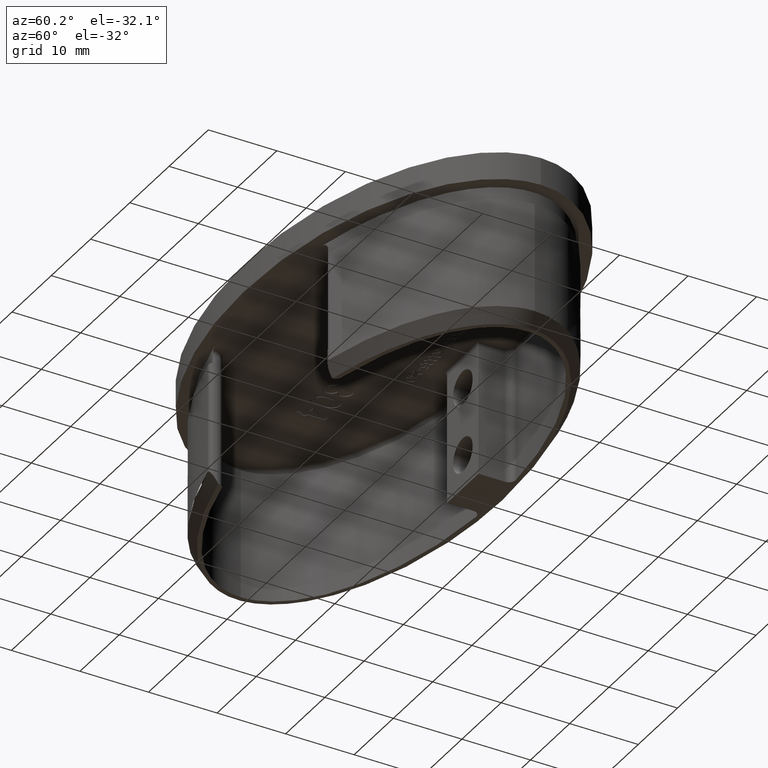
[diagram: clean part render]
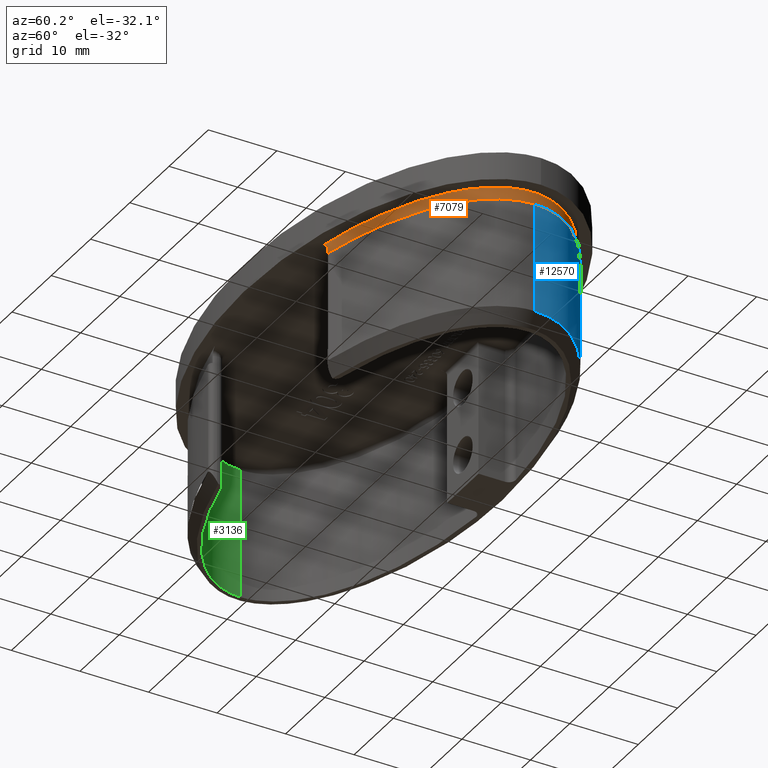
[diagram: same view with three faces highlighted in distinct colors, each labeled with its STEP entity id]
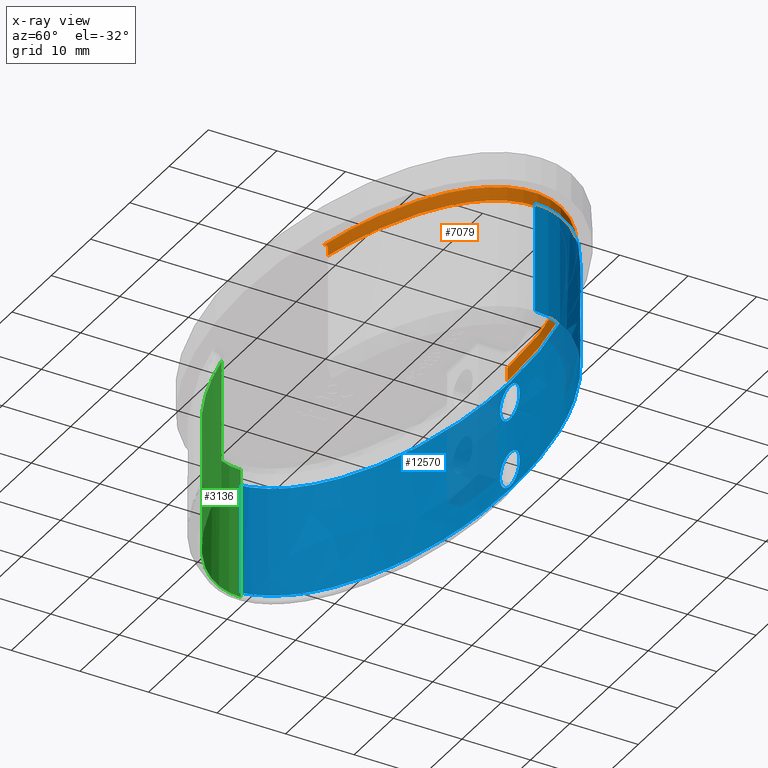
[diagram: x-ray of the same camera — body ghosted, the three highlighted faces saturated]
A machine part, auxiliary view with three faces highlighted in distinct colors.
The next image is the same camera in x-ray (body ghosted, the three faces saturated) — at least one of them is partly hidden behind the body in this view.
Their STEP definitions:

[orange] entity #7079 — the highlighted face is a freeform B-spline surface patch.
#303 = CARTESIAN_POINT ( 'NONE',  ( 14.70177458213686705, -16.59018712653100636, -1.000000000000000000 ) ) ;
#386 = CARTESIAN_POINT ( 'NONE',  ( -10.00098556398771166, 17.52324500305219956, -2.000000000000000000 ) ) ;
#439 = CARTESIAN_POINT ( 'NONE',  ( 10.00098556401274053, 17.52324500303820543, -2.000000000000000000 ) ) ;
#517 = CARTESIAN_POINT ( 'NONE',  ( 5.001459137746250505, 18.00000000000000000, -2.000000000000000000 ) ) ;
#553 = EDGE_CURVE ( 'NONE', #8744, #1716, #4333, .T. ) ;
#1056 = ORIENTED_EDGE ( 'NONE', *, *, #12149, .T. ) ;
#1271 = CARTESIAN_POINT ( 'NONE',  ( 0.000000000000000000, 18.00000000000000000, 0.000000000000000000 ) ) ;
#1339 = CARTESIAN_POINT ( 'NONE',  ( 19.23335817458010766, -15.69082831954310109, 0.000000000000000000 ) ) ;
#1398 = CARTESIAN_POINT ( 'NONE',  ( -5.001459006695888831, -18.00000000000000000, 0.000000000000000000 ) ) ;
#1406 = ORIENTED_EDGE ( 'NONE', *, *, #6774, .F. ) ;
#1465 = CARTESIAN_POINT ( 'NONE',  ( 33.29870535707037504, -8.949571224618509291, 0.000000000000000000 ) ) ;
#1668 = CARTESIAN_POINT ( 'NONE',  ( 30.49755675772195929, 10.96456748856333263, 0.000000000000000000 ) ) ;
#1716 = VERTEX_POINT ( 'NONE', #10536 ) ;
#1877 = CARTESIAN_POINT ( 'NONE',  ( 10.00098556401274053, 17.52324500303820543, -2.000000000000000000 ) ) ;
#1880 = CARTESIAN_POINT ( 'NONE',  ( 14.16660507876495600, -16.69495720496735558, -0.1247870380397225060 ) ) ;
#1924 = CARTESIAN_POINT ( 'NONE',  ( 14.70177458213686883, -16.59018712653100636, -2.000000000000000000 ) ) ;
#2008 = CARTESIAN_POINT ( 'NONE',  ( -30.49755675773563013, -10.96456748853940333, -2.000000000000000000 ) ) ;
#2016 = VECTOR ( 'NONE', #14482, 1000.000000000000000 ) ;
#2070 = CARTESIAN_POINT ( 'NONE',  ( -33.29870535708505486, 8.949571224600251895, -2.000000000000000000 ) ) ;
#2133 = CARTESIAN_POINT ( 'NONE',  ( 19.23335817458010766, -15.69082831954310109, -2.000000000000000000 ) ) ;
#2608 = EDGE_LOOP ( 'NONE', ( #2847, #11158, #1056, #7472, #1406 ) ) ;
#2754 = CARTESIAN_POINT ( 'NONE',  ( 5.001459006695890608, -18.00000000000000000, 0.000000000000000000 ) ) ;
#2847 = ORIENTED_EDGE ( 'NONE', *, *, #553, .T. ) ;
#2944 = CARTESIAN_POINT ( 'NONE',  ( -19.23335817448639773, -15.69082831955618396, 0.000000000000000000 ) ) ;
#2947 = CARTESIAN_POINT ( 'NONE',  ( 37.05002670035415235, 4.610002686341169387, 0.000000000000000000 ) ) ;
#3641 = CARTESIAN_POINT ( 'NONE',  ( 23.46254789306044941, 14.33550923612190786, -2.000000000000000000 ) ) ;
#3778 = CARTESIAN_POINT ( 'NONE',  ( 30.49755675772197350, -10.96456748855990782, -2.000000000000000000 ) ) ;
#4245 = CARTESIAN_POINT ( 'NONE',  ( -30.49755675773563013, -10.96456748853940333, 0.000000000000000000 ) ) ;
#4304 = CARTESIAN_POINT ( 'NONE',  ( -38.00000000000000711, -2.299281454230963639, 0.000000000000000000 ) ) ;
#4333 = B_SPLINE_CURVE_WITH_KNOTS ( 'NONE', 3,
 ( #7693, #4491, #10526, #13559, #15007, #1668, #15067, #2947, #4632, #13425, #10657, #15125, #6211, #12165, #16495, #10595, #14946, #6146 ),
 .UNSPECIFIED., .F., .F.,
 ( 4, 2, 2, 2, 2, 2, 2, 2, 4 ),
 ( 0.000000000000000000, 0.06250000000000000000, 0.1250000000000000000, 0.1875000000000000278, 0.2500000000000000000, 0.3125000000000000000, 0.3750000000000000555, 0.4375000000000000000, 0.4418165816063158169 ),
 .UNSPECIFIED. ) ;
#4426 = CARTESIAN_POINT ( 'NONE',  ( -37.05002670037740842, -4.610002686331815092, 0.000000000000000000 ) ) ;
#4489 = CARTESIAN_POINT ( 'NONE',  ( 37.05002670035131018, -4.610002686339020883, 0.000000000000000000 ) ) ;
#4491 = CARTESIAN_POINT ( 'NONE',  ( 5.001459137746250505, 18.00000000000000000, 0.000000000000000000 ) ) ;
#4559 = CARTESIAN_POINT ( 'NONE',  ( -30.49755675774931163, 10.96456748854965646, 0.000000000000000000 ) ) ;
#4632 = CARTESIAN_POINT ( 'NONE',  ( 38.00000000000000711, 2.299281454214719300, 0.000000000000000000 ) ) ;
#4897 = CARTESIAN_POINT ( 'NONE',  ( 13.78899793503897442, -16.76607947543054422, -3.811648262644349985E-18 ) ) ;
#4932 = EDGE_CURVE ( 'NONE', #1716, #7601, #7014, .T. ) ;
#5088 = CARTESIAN_POINT ( 'NONE',  ( -10.00098556405344219, -17.52324500303577182, -2.000000000000000000 ) ) ;
#5280 = CARTESIAN_POINT ( 'NONE',  ( 19.28503150345665063, -15.67424782684894602, -2.000000000000000000 ) ) ;
#5473 = CARTESIAN_POINT ( 'NONE',  ( 23.48404783755636061, -14.32520717938796473, -2.000000000000000000 ) ) ;
#5714 = VECTOR ( 'NONE', #6400, 1000.000000000000000 ) ;
#6146 = CARTESIAN_POINT ( 'NONE',  ( 13.65535694829211977, -16.79057040111487709, 0.000000000000000000 ) ) ;
#6211 = CARTESIAN_POINT ( 'NONE',  ( 30.49755675772197350, -10.96456748855990782, 0.000000000000000000 ) ) ;
#6212 = CARTESIAN_POINT ( 'NONE',  ( 14.47488620219077227, -16.63518998353909240, -0.3788720075234017770 ) ) ;
#6400 = DIRECTION ( 'NONE',  ( 0.000000000000000000, 0.000000000000000000, -1.000000000000000000 ) ) ;
#6476 = CARTESIAN_POINT ( 'NONE',  ( -10.00098556398771166, 17.52324500305219956, 0.000000000000000000 ) ) ;
#6536 = CARTESIAN_POINT ( 'NONE',  ( 0.000000000000000000, 18.00000000000000000, -2.000000000000000000 ) ) ;
#6597 = CARTESIAN_POINT ( 'NONE',  ( 38.00000000000000711, 2.299281454214719300, -2.000000000000000000 ) ) ;
#6774 = EDGE_CURVE ( 'NONE', #8744, #19388, #13515, .T. ) ;
#7014 = B_SPLINE_CURVE_WITH_KNOTS ( 'NONE', 3,
 ( #10658, #4897, #18403, #1880, #15198, #6212, #15396, #16689, #7694, #18202 ),
 .UNSPECIFIED., .F., .F.,
 ( 4, 2, 2, 2, 4 ),
 ( 0.000000000000000000, 0.0004017078428237928073, 0.0008034156856475856145, 0.001205123528471378422, 0.001606831371295171229 ),
 .UNSPECIFIED. ) ;
#7079 = ADVANCED_FACE ( 'NONE', ( #19367 ), #10447, .F. ) ;
#7259 = CARTESIAN_POINT ( 'NONE',  ( 33.29870535706749735, 8.949571224616407861, 0.000000000000000000 ) ) ;
#7373 = CARTESIAN_POINT ( 'NONE',  ( 37.05002670035415235, 4.610002686341169387, 0.000000000000000000 ) ) ;
#7472 = ORIENTED_EDGE ( 'NONE', *, *, #16670, .F. ) ;
#7601 = VERTEX_POINT ( 'NONE', #7702 ) ;
#7693 = CARTESIAN_POINT ( 'NONE',  ( 0.000000000000000000, 18.00000000000000000, 0.000000000000000000 ) ) ;
#7694 = CARTESIAN_POINT ( 'NONE',  ( 14.70177458213686883, -16.59018712653099925, -0.8638211266415898315 ) ) ;
#7702 = CARTESIAN_POINT ( 'NONE',  ( 14.70177458213686705, -16.59018712653100636, -0.9999999999999991118 ) ) ;
#7820 = CARTESIAN_POINT ( 'NONE',  ( 0.000000000000000000, 18.00000000000000000, 0.000000000000000000 ) ) ;
#7882 = CARTESIAN_POINT ( 'NONE',  ( -19.23335817455206964, 15.69082831953976331, 0.000000000000000000 ) ) ;
#7948 = CARTESIAN_POINT ( 'NONE',  ( -33.29870535704424128, -8.949571224625765709, -2.000000000000000000 ) ) ;
#8744 = VERTEX_POINT ( 'NONE', #14567 ) ;
#8761 = CARTESIAN_POINT ( 'NONE',  ( -33.29870535704424128, -8.949571224625765709, 0.000000000000000000 ) ) ;
#8817 = CARTESIAN_POINT ( 'NONE',  ( 5.001459137746250505, 18.00000000000000000, 0.000000000000000000 ) ) ;
#8877 = CARTESIAN_POINT ( 'NONE',  ( 38.00000000000000711, -2.299281454214719300, 0.000000000000000000 ) ) ;
#9269 = CARTESIAN_POINT ( 'NONE',  ( -23.46254789303310417, 14.33550923613558226, 0.000000000000000000 ) ) ;
#9332 = CARTESIAN_POINT ( 'NONE',  ( 0.000000000000000000, 18.00000000000000000, -2.000000000000000000 ) ) ;
#9401 = CARTESIAN_POINT ( 'NONE',  ( -37.05002670037740842, -4.610002686331815092, -2.000000000000000000 ) ) ;
#9453 = CARTESIAN_POINT ( 'NONE',  ( 19.23335817452707630, 15.69082831955375212, -2.000000000000000000 ) ) ;
#9461 = CARTESIAN_POINT ( 'NONE',  ( -37.05002670033659484, 4.610002686357325352, -2.000000000000000000 ) ) ;
#9533 = CARTESIAN_POINT ( 'NONE',  ( -38.00000000000000711, 2.299281454230968080, -2.000000000000000000 ) ) ;
#9603 = CARTESIAN_POINT ( 'NONE',  ( 38.00000000000000711, -2.299281454214719300, -2.000000000000000000 ) ) ;
#9667 = CARTESIAN_POINT ( 'NONE',  ( 0.000000000000000000, 18.00000000000000000, -2.000000000000000000 ) ) ;
#10328 = CARTESIAN_POINT ( 'NONE',  ( 23.46254789306046362, -14.33550923612532202, 0.000000000000000000 ) ) ;
#10370 = VERTEX_POINT ( 'NONE', #1924 ) ;
#10393 = LINE ( 'NONE', #303, #5714 ) ;
#10447 = B_SPLINE_SURFACE_WITH_KNOTS ( 'NONE', 1, 3, ( 
 ( #1271, #8817, #16371, #13296, #16245, #11915, #7259, #7373, #19315, #8877, #4489, #1465, #11742, #10328, #1339, #19256, #2754, #1398, #17767, #2944, #13421, #4245, #8761, #4426, #4304, #11975, #14944, #13556, #4559, #9269, #7882, #6476, #18525, #7820 ),
 ( #6536, #517, #1877, #16884, #12557, #11121, #18400, #17023, #6597, #9603, #14012, #16825, #15650, #18590, #2133, #15520, #18466, #16949, #5088, #18332, #15458, #2008, #7948, #9401, #11055, #9533, #9461, #2070, #12486, #15584, #14141, #386, #10992, #9332 ) ),
 .UNSPECIFIED., .F., .T., .F.,
 ( 2, 2 ),
 ( 4, 2, 2, 2, 2, 2, 2, 2, 2, 2, 2, 2, 2, 2, 2, 2, 4 ),
 ( 0.000000000000000000, 1.000000000000000000 ),
 ( 0.000000000000000000, 0.06250000000000000000, 0.1250000000000000000, 0.1875000000000000000, 0.2500000000000000000, 0.3125000000000000000, 0.3750000000000000000, 0.4375000000000000000, 0.5000000000000000000, 0.5625000000000000000, 0.6250000000000000000, 0.6875000000000000000, 0.7500000000000000000, 0.8125000000000000000, 0.8750000000000000000, 0.9375000000000000000, 1.000000000000000000 ),
 .UNSPECIFIED. ) ;
#10526 = CARTESIAN_POINT ( 'NONE',  ( 10.00098556401274053, 17.52324500303820543, 0.000000000000000000 ) ) ;
#10536 = CARTESIAN_POINT ( 'NONE',  ( 13.65535694829211977, -16.79057040111487709, 0.000000000000000000 ) ) ;
#10595 = CARTESIAN_POINT ( 'NONE',  ( 14.29835355092065541, -16.67031487050499194, 0.000000000000000000 ) ) ;
#10657 = CARTESIAN_POINT ( 'NONE',  ( 37.05002670035131018, -4.610002686339020883, 0.000000000000000000 ) ) ;
#10658 = CARTESIAN_POINT ( 'NONE',  ( 13.65535694829211977, -16.79057040111487709, 0.000000000000000000 ) ) ;
#10992 = CARTESIAN_POINT ( 'NONE',  ( -5.001459137746250505, 18.00000000000000000, -2.000000000000000000 ) ) ;
#11055 = CARTESIAN_POINT ( 'NONE',  ( -38.00000000000000711, -2.299281454230963639, -2.000000000000000000 ) ) ;
#11113 = CARTESIAN_POINT ( 'NONE',  ( 0.000000000000000000, 18.00000000000000000, -2.000000000000000000 ) ) ;
#11121 = CARTESIAN_POINT ( 'NONE',  ( 30.49755675772195929, 10.96456748856333263, -2.000000000000000000 ) ) ;
#11158 = ORIENTED_EDGE ( 'NONE', *, *, #4932, .T. ) ;
#11475 = CARTESIAN_POINT ( 'NONE',  ( 37.05002670035131018, -4.610002686339020883, -2.000000000000000000 ) ) ;
#11742 = CARTESIAN_POINT ( 'NONE',  ( 30.49755675772197350, -10.96456748855990782, 0.000000000000000000 ) ) ;
#11915 = CARTESIAN_POINT ( 'NONE',  ( 30.49755675772195929, 10.96456748856333263, 0.000000000000000000 ) ) ;
#11975 = CARTESIAN_POINT ( 'NONE',  ( -38.00000000000000711, 2.299281454230968080, 0.000000000000000000 ) ) ;
#12149 = EDGE_CURVE ( 'NONE', #7601, #10370, #10393, .T. ) ;
#12165 = CARTESIAN_POINT ( 'NONE',  ( 23.46254789306046362, -14.33550923612532202, 0.000000000000000000 ) ) ;
#12472 = B_SPLINE_CURVE_WITH_KNOTS ( 'NONE', 3,
 ( #11113, #16940, #439, #9453, #3641, #15642, #16041, #18722, #14476, #18983, #11475, #12749, #3778, #5473, #5280, #14537 ),
 .UNSPECIFIED., .F., .F.,
 ( 4, 2, 2, 2, 2, 2, 2, 4 ),
 ( 0.000000000000000000, 0.06250000000000000000, 0.1250000000000000000, 0.1875000000000000000, 0.2500000000000000000, 0.3125000000000000000, 0.3750000000000000000, 0.4371179829885522006 ),
 .UNSPECIFIED. ) ;
#12486 = CARTESIAN_POINT ( 'NONE',  ( -30.49755675774931163, 10.96456748854965646, -2.000000000000000000 ) ) ;
#12557 = CARTESIAN_POINT ( 'NONE',  ( 23.46254789306044941, 14.33550923612190786, -2.000000000000000000 ) ) ;
#12749 = CARTESIAN_POINT ( 'NONE',  ( 33.29870535707037504, -8.949571224618509291, -2.000000000000000000 ) ) ;
#13296 = CARTESIAN_POINT ( 'NONE',  ( 19.23335817452707630, 15.69082831955375212, 0.000000000000000000 ) ) ;
#13344 = CARTESIAN_POINT ( 'NONE',  ( 0.000000000000000000, 18.00000000000000000, -2.000000000000000000 ) ) ;
#13421 = CARTESIAN_POINT ( 'NONE',  ( -23.46254789304677146, -14.33550923614584072, 0.000000000000000000 ) ) ;
#13425 = CARTESIAN_POINT ( 'NONE',  ( 38.00000000000000711, -2.299281454214719300, 0.000000000000000000 ) ) ;
#13515 = LINE ( 'NONE', #9667, #2016 ) ;
#13556 = CARTESIAN_POINT ( 'NONE',  ( -33.29870535708505486, 8.949571224600251895, 0.000000000000000000 ) ) ;
#13559 = CARTESIAN_POINT ( 'NONE',  ( 19.23335817452707630, 15.69082831955375212, 0.000000000000000000 ) ) ;
#14012 = CARTESIAN_POINT ( 'NONE',  ( 37.05002670035131018, -4.610002686339020883, -2.000000000000000000 ) ) ;
#14141 = CARTESIAN_POINT ( 'NONE',  ( -19.23335817455206964, 15.69082831953976331, -2.000000000000000000 ) ) ;
#14476 = CARTESIAN_POINT ( 'NONE',  ( 38.00000000000000711, 2.299281454214719300, -2.000000000000000000 ) ) ;
#14482 = DIRECTION ( 'NONE',  ( -0.000000000000000000, -0.000000000000000000, -1.000000000000000000 ) ) ;
#14537 = CARTESIAN_POINT ( 'NONE',  ( 14.70177458213686883, -16.59018712653100636, -2.000000000000000000 ) ) ;
#14567 = CARTESIAN_POINT ( 'NONE',  ( 0.000000000000000000, 18.00000000000000000, 0.000000000000000000 ) ) ;
#14944 = CARTESIAN_POINT ( 'NONE',  ( -37.05002670033659484, 4.610002686357325352, 0.000000000000000000 ) ) ;
#14946 = CARTESIAN_POINT ( 'NONE',  ( 13.97770669326301807, -16.73149688002960644, 0.000000000000000000 ) ) ;
#15007 = CARTESIAN_POINT ( 'NONE',  ( 23.46254789306044941, 14.33550923612190786, 0.000000000000000000 ) ) ;
#15067 = CARTESIAN_POINT ( 'NONE',  ( 33.29870535706749735, 8.949571224616407861, 0.000000000000000000 ) ) ;
#15125 = CARTESIAN_POINT ( 'NONE',  ( 33.29870535707037504, -8.949571224618509291, 0.000000000000000000 ) ) ;
#15198 = CARTESIAN_POINT ( 'NONE',  ( 14.28017571177797684, -16.67308670851837249, -0.1972255417781894615 ) ) ;
#15396 = CARTESIAN_POINT ( 'NONE',  ( 14.55618894326511459, -16.61913627987179254, -0.4885235534563836524 ) ) ;
#15458 = CARTESIAN_POINT ( 'NONE',  ( -23.46254789304677146, -14.33550923614584072, -2.000000000000000000 ) ) ;
#15520 = CARTESIAN_POINT ( 'NONE',  ( 10.00098556395974292, -17.52324500304884936, -2.000000000000000000 ) ) ;
#15584 = CARTESIAN_POINT ( 'NONE',  ( -23.46254789303310417, 14.33550923613558226, -2.000000000000000000 ) ) ;
#15642 = CARTESIAN_POINT ( 'NONE',  ( 30.49755675772195929, 10.96456748856333263, -2.000000000000000000 ) ) ;
#15650 = CARTESIAN_POINT ( 'NONE',  ( 30.49755675772197350, -10.96456748855990782, -2.000000000000000000 ) ) ;
#16041 = CARTESIAN_POINT ( 'NONE',  ( 33.29870535706749735, 8.949571224616407861, -2.000000000000000000 ) ) ;
#16245 = CARTESIAN_POINT ( 'NONE',  ( 23.46254789306044941, 14.33550923612190786, 0.000000000000000000 ) ) ;
#16371 = CARTESIAN_POINT ( 'NONE',  ( 10.00098556401274053, 17.52324500303820543, 0.000000000000000000 ) ) ;
#16495 = CARTESIAN_POINT ( 'NONE',  ( 19.23335817458010766, -15.69082831954310109, 0.000000000000000000 ) ) ;
#16670 = EDGE_CURVE ( 'NONE', #19388, #10370, #12472, .T. ) ;
#16689 = CARTESIAN_POINT ( 'NONE',  ( 14.66948927108458811, -16.59665665007613100, -0.7301985605295896464 ) ) ;
#16825 = CARTESIAN_POINT ( 'NONE',  ( 33.29870535707037504, -8.949571224618509291, -2.000000000000000000 ) ) ;
#16884 = CARTESIAN_POINT ( 'NONE',  ( 19.23335817452707630, 15.69082831955375212, -2.000000000000000000 ) ) ;
#16940 = CARTESIAN_POINT ( 'NONE',  ( 5.001459137746250505, 18.00000000000000000, -2.000000000000000000 ) ) ;
#16949 = CARTESIAN_POINT ( 'NONE',  ( -5.001459006695888831, -18.00000000000000000, -2.000000000000000000 ) ) ;
#17023 = CARTESIAN_POINT ( 'NONE',  ( 37.05002670035415235, 4.610002686341169387, -2.000000000000000000 ) ) ;
#17767 = CARTESIAN_POINT ( 'NONE',  ( -10.00098556405344219, -17.52324500303577182, 0.000000000000000000 ) ) ;
#18202 = CARTESIAN_POINT ( 'NONE',  ( 14.70177458213686705, -16.59018712653100636, -0.9999999999999991118 ) ) ;
#18332 = CARTESIAN_POINT ( 'NONE',  ( -19.23335817448639773, -15.69082831955618396, -2.000000000000000000 ) ) ;
#18400 = CARTESIAN_POINT ( 'NONE',  ( 33.29870535706749735, 8.949571224616407861, -2.000000000000000000 ) ) ;
#18403 = CARTESIAN_POINT ( 'NONE',  ( 13.91959360843205751, -16.74172268930961494, -0.02579415412268826202 ) ) ;
#18466 = CARTESIAN_POINT ( 'NONE',  ( 5.001459006695890608, -18.00000000000000000, -2.000000000000000000 ) ) ;
#18525 = CARTESIAN_POINT ( 'NONE',  ( -5.001459137746250505, 18.00000000000000000, 0.000000000000000000 ) ) ;
#18590 = CARTESIAN_POINT ( 'NONE',  ( 23.46254789306046362, -14.33550923612532202, -2.000000000000000000 ) ) ;
#18722 = CARTESIAN_POINT ( 'NONE',  ( 37.05002670035415235, 4.610002686341169387, -2.000000000000000000 ) ) ;
#18983 = CARTESIAN_POINT ( 'NONE',  ( 38.00000000000000711, -2.299281454214719300, -2.000000000000000000 ) ) ;
#19256 = CARTESIAN_POINT ( 'NONE',  ( 10.00098556395974292, -17.52324500304884936, 0.000000000000000000 ) ) ;
#19315 = CARTESIAN_POINT ( 'NONE',  ( 38.00000000000000711, 2.299281454214719300, 0.000000000000000000 ) ) ;
#19367 = FACE_OUTER_BOUND ( 'NONE', #2608, .T. ) ;
#19388 = VERTEX_POINT ( 'NONE', #13344 ) ;

[blue] entity #12570 — the highlighted face is a freeform B-spline surface patch.
#139 = CARTESIAN_POINT ( 'NONE',  ( 37.41301492589269628, 4.801742414845031171, -18.00000000000000355 ) ) ;
#205 = CARTESIAN_POINT ( 'NONE',  ( 10.02102767301664699, 17.92706964964917304, -18.00000000000000000 ) ) ;
#208 = CARTESIAN_POINT ( 'NONE',  ( 0.1651916112997850461, 18.39999999999999503, -7.499999999999989342 ) ) ;
#220 = CARTESIAN_POINT ( 'NONE',  ( -1.175660927181459039E-15, 18.39999999999999858, -17.49999999999998934 ) ) ;
#265 = CARTESIAN_POINT ( 'NONE',  ( -1.535880800957411862, 18.38560925453257866, -13.00067230266357576 ) ) ;
#405 = CARTESIAN_POINT ( 'NONE',  ( -1.987441010615153658, 18.37539106423211521, -13.47461120389274392 ) ) ;
#412 = CARTESIAN_POINT ( 'NONE',  ( 2.169205645797913196, 18.37066986058962215, -3.746569101307366978 ) ) ;
#422 = EDGE_CURVE ( 'NONE', #12236, #14417, #15151, .T. ) ;
#462 = EDGE_LOOP ( 'NONE', ( #11827, #4523, #8415, #16770, #16272, #12958, #19126, #12909, #6901, #10976, #18872, #13170 ) ) ;
#476 = CARTESIAN_POINT ( 'NONE',  ( 0.1631688527252036502, 18.39999999999997016, -2.500000000001036504 ) ) ;
#501 = VERTEX_POINT ( 'NONE', #18956 ) ;
#547 = CARTESIAN_POINT ( 'NONE',  ( 0.8050985230536564785, 18.39609876381970466, -2.627510670136736781 ) ) ;
#764 = CARTESIAN_POINT ( 'NONE',  ( 35.47697406041196899, 7.041375141660725312, -18.00000000000000355 ) ) ;
#815 = CARTESIAN_POINT ( 'NONE',  ( -27.15290040940429606, 13.01076476815872240, -18.00000000000000355 ) ) ;
#823 = VERTEX_POINT ( 'NONE', #13277 ) ;
#827 =( BOUNDED_CURVE ( )  B_SPLINE_CURVE ( 3, ( #764, #15557, #5193, #15694 ),
 .UNSPECIFIED., .F., .F. ) 
 B_SPLINE_CURVE_WITH_KNOTS ( ( 4, 4 ),
 ( 3.534291734473374191, 3.926990816537831108 ),
 .UNSPECIFIED. ) 
 CURVE ( )  GEOMETRIC_REPRESENTATION_ITEM ( )  RATIONAL_B_SPLINE_CURVE ( ( 1.000000000000000000, 0.9871901869117032380, 0.9871901869117032380, 1.000000000000000000 ) ) 
 REPRESENTATION_ITEM ( '' )  );
#969 = CARTESIAN_POINT ( 'NONE',  ( 1.883391063540569954, 18.37793863121195770, -16.65210135456415586 ) ) ;
#1037 = CARTESIAN_POINT ( 'NONE',  ( 0.6471791575970060606, 18.39754593333865884, -17.42026801779619305 ) ) ;
#1362 = CARTESIAN_POINT ( 'NONE',  ( -1.881842511664650885, 18.37797507304529887, -3.346147216251353029 ) ) ;
#1421 = CARTESIAN_POINT ( 'NONE',  ( -2.371567775319074922, 18.36490013659242848, -4.192256412648656116 ) ) ;
#1423 =( BOUNDED_CURVE ( )  B_SPLINE_CURVE ( 3, ( #4893, #6413, #3455, #3720 ),
 .UNSPECIFIED., .F., .F. ) 
 B_SPLINE_CURVE_WITH_KNOTS ( ( 4, 4 ),
 ( 3.926990816537831108, 4.319689898529164296 ),
 .UNSPECIFIED. ) 
 CURVE ( )  GEOMETRIC_REPRESENTATION_ITEM ( )  RATIONAL_B_SPLINE_CURVE ( ( 1.000000000000000000, 0.9871901869164585452, 0.9871901869164585452, 1.000000000000000000 ) ) 
 REPRESENTATION_ITEM ( '' )  );
#1692 = CARTESIAN_POINT ( 'NONE',  ( 14.69504380838229274, 16.99938339710357837, -18.00000000000000355 ) ) ;
#1959 = CARTESIAN_POINT ( 'NONE',  ( -2.419842140115257223, 18.36343584512191285, -14.35122562987971584 ) ) ;
#1984 = VERTEX_POINT ( 'NONE', #2238 ) ;
#2004 = EDGE_CURVE ( 'NONE', #14247, #4524, #9231, .T. ) ;
#2047 =( BOUNDED_SURFACE ( )  B_SPLINE_SURFACE ( 3, 1, ( 
 ( #7718, #6305 ),
 ( #6375, #4862 ),
 ( #10821, #10887 ),
 ( #4658, #18362 ) ),
 .UNSPECIFIED., .F., .F., .F. ) 
 B_SPLINE_SURFACE_WITH_KNOTS ( ( 4, 4 ),
 ( 2, 2 ),
 ( 0.000000000000000000, 1.000000000000000000 ),
 ( 0.000000000000000000, 1.000000000000000000 ),
 .UNSPECIFIED. ) 
 GEOMETRIC_REPRESENTATION_ITEM ( )  RATIONAL_B_SPLINE_SURFACE ( (
 ( 1.000000000000000000, 1.000000000000000000),
 ( 0.3333333333333333703, 0.3333333333333333703),
 ( 0.3333333333333333703, 0.3333333333333333703),
 ( 1.000000000000000000, 1.000000000000000000) ) ) 
 REPRESENTATION_ITEM ( '' )  SURFACE ( )  );
#2152 = CARTESIAN_POINT ( 'NONE',  ( -0.3303083804049491978, 18.40000000000000213, -17.49999999999999289 ) ) ;
#2167 = CARTESIAN_POINT ( 'NONE',  ( -38.40000000000000568, 2.587416071191484514E-13, -18.00000000000000355 ) ) ;
#2238 = CARTESIAN_POINT ( 'NONE',  ( 1.568643228372864806E-11, 18.39999999999999858, -2.500000000000012879 ) ) ;
#2281 = B_SPLINE_CURVE_WITH_KNOTS ( 'NONE', 3,
 ( #17726, #7279, #10346, #17655, #4206, #8899, #16328, #1362, #11700, #7216, #13379, #1421, #8721, #17845, #7399, #19394, #4328, #8662, #19155, #10416, #11935, #2964, #19216, #14833, #13449, #5916, #5786, #14898, #10168, #17785 ),
 .UNSPECIFIED., .F., .F.,
 ( 4, 2, 2, 2, 2, 2, 2, 2, 2, 2, 2, 2, 2, 2, 4 ),
 ( 0.007816617190815325009, 0.008305045095883496070, 0.008793473000951668866, 0.009770328811088012724, 0.01025875671615618379, 0.01074718462122435658, 0.01123561252629252764, 0.01172404043136069871, 0.01221246833642886803, 0.01270089624149703909, 0.01318932414656521016, 0.01367775205163338122, 0.01416617995670155228, 0.01465460786176972161, 0.01563146367190606373 ),
 .UNSPECIFIED. ) ;
#2374 = CARTESIAN_POINT ( 'NONE',  ( 1.884850854270438747, 18.37790624312661691, -13.34937225348497769 ) ) ;
#2417 = EDGE_CURVE ( 'NONE', #15189, #5814, #6749, .T. ) ;
#2442 = CARTESIAN_POINT ( 'NONE',  ( 1.986874477844383424, 18.37540570712491217, -16.52622299319988031 ) ) ;
#2488 = CARTESIAN_POINT ( 'NONE',  ( -23.57556333207725530, 14.72490545253960903, -18.00000000000000355 ) ) ;
#2508 = CARTESIAN_POINT ( 'NONE',  ( 2.371933832095105110, 18.36488893563018010, -15.80650185664534924 ) ) ;
#2629 = CARTESIAN_POINT ( 'NONE',  ( 0.8059648611845420252, 18.39608984410493164, -17.37218839875965415 ) ) ;
#2639 = EDGE_CURVE ( 'NONE', #5428, #12236, #10451, .T. ) ;
#2964 = CARTESIAN_POINT ( 'NONE',  ( -1.989808332753002729, 18.37533183833437889, -6.522268948426369839 ) ) ;
#3026 = CARTESIAN_POINT ( 'NONE',  ( 0.3276204494535567280, 18.39948962050489101, -7.483788030628806709 ) ) ;
#3124 = ORIENTED_EDGE ( 'NONE', *, *, #10784, .T. ) ;
#3217 = CARTESIAN_POINT ( 'NONE',  ( 1.524114617936651150, 18.38561665481735830, -6.988409210695714968 ) ) ;
#3229 = CARTESIAN_POINT ( 'NONE',  ( 38.40000000000000568, 2.253350110431129645E-15, -1.999999999999998224 ) ) ;
#3280 = CARTESIAN_POINT ( 'NONE',  ( 1.988185483837665579, 18.37537216200915680, -3.475644190677206868 ) ) ;
#3348 = CARTESIAN_POINT ( 'NONE',  ( 1.883391063540569510, 18.37793863121195059, -6.652101354564151414 ) ) ;
#3455 = CARTESIAN_POINT ( 'NONE',  ( 19.36905994538534159, 16.07169714423299212, -18.00000000000000355 ) ) ;
#3473 = CARTESIAN_POINT ( 'NONE',  ( -2.499861379274489259, 18.36096824235475111, -14.83305200954916891 ) ) ;
#3490 =( BOUNDED_CURVE ( )  B_SPLINE_CURVE ( 3, ( #7923, #16794, #9509, #3229 ),
 .UNSPECIFIED., .F., .F. ) 
 B_SPLINE_CURVE_WITH_KNOTS ( ( 4, 4 ),
 ( 1.570796326794896558, 3.141592653589793116 ),
 .UNSPECIFIED. ) 
 CURVE ( )  GEOMETRIC_REPRESENTATION_ITEM ( )  RATIONAL_B_SPLINE_CURVE ( ( 1.000000000000000000, 0.8047378541243649375, 0.8047378541243649375, 1.000000000000000000 ) ) 
 REPRESENTATION_ITEM ( '' )  );
#3508 = CARTESIAN_POINT ( 'NONE',  ( 38.40000000000000568, 6.223092789634205433E-13, -18.00000000000000355 ) ) ;
#3534 = CARTESIAN_POINT ( 'NONE',  ( -33.54093318729473339, 9.281007876573450943, -18.00000000000000355 ) ) ;
#3533 = CARTESIAN_POINT ( 'NONE',  ( 2.499941923088452977, 18.36096572438981056, -5.163958009076693223 ) ) ;
#3720 = CARTESIAN_POINT ( 'NONE',  ( 14.69504380838229274, 16.99938339710357837, -18.00000000000000355 ) ) ;
#3860 = CARTESIAN_POINT ( 'NONE',  ( -38.40000000000000568, 0.000000000000000000, -1.999999999999998224 ) ) ;
#3902 = CARTESIAN_POINT ( 'NONE',  ( 0.3288799072439311244, 18.39948525623456277, -12.51635033368965289 ) ) ;
#3933 = CARTESIAN_POINT ( 'NONE',  ( 0.000000000000000000, 18.39999999999999858, -2.000000000000000000 ) ) ;
#4078 = CARTESIAN_POINT ( 'NONE',  ( 2.419906804508649145, 18.36343397718786008, -15.64893935084492682 ) ) ;
#4206 = CARTESIAN_POINT ( 'NONE',  ( -0.8055227779908801233, 18.39609248836096356, -2.627735494484719325 ) ) ;
#4328 = CARTESIAN_POINT ( 'NONE',  ( -2.484014493944838531, 18.36146832404347506, -5.325861409488449105 ) ) ;
#4523 = ORIENTED_EDGE ( 'NONE', *, *, #2417, .T. ) ;
#4524 = VERTEX_POINT ( 'NONE', #11589 ) ;
#4658 = CARTESIAN_POINT ( 'NONE',  ( 38.40000000000000568, 2.253350110431129645E-15, -18.00000000000000355 ) ) ;
#4729 = EDGE_CURVE ( 'NONE', #5814, #9629, #827, .T. ) ;
#4848 = CARTESIAN_POINT ( 'NONE',  ( -2.371567775319074922, 18.36490013659243559, -14.19225641264865700 ) ) ;
#4862 = CARTESIAN_POINT ( 'NONE',  ( -38.40000000000000568, 36.79999999999999005, -1.999999999999997780 ) ) ;
#4893 = CARTESIAN_POINT ( 'NONE',  ( 27.15290040976621455, 13.01076476798530379, -18.00000000000000355 ) ) ;
#4914 = CARTESIAN_POINT ( 'NONE',  ( -1.881842511664661322, 18.37797507304529887, -13.34614721625135125 ) ) ;
#4976 = CARTESIAN_POINT ( 'NONE',  ( -2.500136875366590239, 18.36095962977969265, -15.16277024155509068 ) ) ;
#4984 = CARTESIAN_POINT ( 'NONE',  ( 2.500057761529519418, 18.36096210304060605, -4.837817890716679337 ) ) ;
#5049 = CARTESIAN_POINT ( 'NONE',  ( 2.169627383058749803, 18.37065941323844598, -6.252894183226601399 ) ) ;
#5111 = CARTESIAN_POINT ( 'NONE',  ( -1.884318010876125715, 18.37791680283161000, -16.65105138252633665 ) ) ;
#5177 = CARTESIAN_POINT ( 'NONE',  ( -1.653721930736988366, 18.38301247368754332, -16.88197471015256923 ) ) ;
#5193 = CARTESIAN_POINT ( 'NONE',  ( 30.73023748554194867, 11.29662408430206000, -18.00000000000000355 ) ) ;
#5312 = CARTESIAN_POINT ( 'NONE',  ( -19.36905993986655616, 16.07169714598274268, -18.00000000000000355 ) ) ;
#5392 = CARTESIAN_POINT ( 'NONE',  ( 1.568643228372865129E-11, 18.39999999999999858, -12.50000000000001243 ) ) ;
#5428 = VERTEX_POINT ( 'NONE', #14265 ) ;
#5516 = CARTESIAN_POINT ( 'NONE',  ( 1.254203873368537669, 18.39029760986820961, -12.83124474836059470 ) ) ;
#5786 = CARTESIAN_POINT ( 'NONE',  ( -1.109497050352108216, 18.39245929501087673, -7.246224443163407969 ) ) ;
#5814 = VERTEX_POINT ( 'NONE', #16567 ) ;
#5916 = CARTESIAN_POINT ( 'NONE',  ( -1.255310523569002301, 18.39028188684175902, -7.168209219895874007 ) ) ;
#5981 = VERTEX_POINT ( 'NONE', #3933 ) ;
#6074 = CARTESIAN_POINT ( 'NONE',  ( -14.69504379953443518, 16.99938339885967764, -18.00000000000000355 ) ) ;
#6134 = CARTESIAN_POINT ( 'NONE',  ( -38.40000000000000568, 0.000000000000000000, -1.999999999999998224 ) ) ;
#6299 = CARTESIAN_POINT ( 'NONE',  ( 5.059118609289162016, 18.39999999999999503, -18.00000000000000000 ) ) ;
#6301 = CARTESIAN_POINT ( 'NONE',  ( 2.483800214125521766, 18.36147509616104756, -4.672187695063175994 ) ) ;
#6305 = CARTESIAN_POINT ( 'NONE',  ( -38.40000000000000568, 0.000000000000000000, -1.999999999999998224 ) ) ;
#6359 = CARTESIAN_POINT ( 'NONE',  ( 1.568643228372865129E-11, 18.39999999999999858, -12.50000000000001243 ) ) ;
#6375 = CARTESIAN_POINT ( 'NONE',  ( -38.40000000000000568, 36.79999999999999005, -17.99999999999999645 ) ) ;
#6413 = CARTESIAN_POINT ( 'NONE',  ( 23.57556333466527931, 14.72490545134520801, -18.00000000000000355 ) ) ;
#6442 = CARTESIAN_POINT ( 'NONE',  ( 1.254203873368538336, 18.39029760986821316, -2.831244748360593366 ) ) ;
#6484 = LINE ( 'NONE', #14566, #15627 ) ;
#6492 = CARTESIAN_POINT ( 'NONE',  ( -2.420759474044408943, 18.36340798958389442, -15.64531948145556406 ) ) ;
#6494 = EDGE_CURVE ( 'NONE', #4524, #14247, #15818, .T. ) ;
#6549 = ORIENTED_EDGE ( 'NONE', *, *, #6494, .T. ) ;
#6555 = CARTESIAN_POINT ( 'NONE',  ( -0.3252669441827213404, 18.39950188725401148, -12.51581371501202788 ) ) ;
#6592 = VERTEX_POINT ( 'NONE', #12422 ) ;
#6616 = CARTESIAN_POINT ( 'NONE',  ( -1.989808332753002285, 18.37533183833437533, -16.52226894842637250 ) ) ;
#6620 = DIRECTION ( 'NONE',  ( -0.000000000000000000, -0.000000000000000000, 1.000000000000000000 ) ) ;
#6689 = CARTESIAN_POINT ( 'NONE',  ( -1.109497050352108438, 18.39245929501088028, -17.24622444316340619 ) ) ;
#6749 =( BOUNDED_CURVE ( )  B_SPLINE_CURVE ( 3, ( #7652, #9356, #139, #7773 ),
 .UNSPECIFIED., .F., .T. ) 
 B_SPLINE_CURVE_WITH_KNOTS ( ( 4, 4 ),
 ( 3.141592653589826867, 3.534291734473374191 ),
 .UNSPECIFIED. ) 
 CURVE ( )  GEOMETRIC_REPRESENTATION_ITEM ( )  RATIONAL_B_SPLINE_CURVE ( ( 1.000000000000000000, 0.9871901869884980307, 0.9871901869884980307, 1.000000000000000000 ) ) 
 REPRESENTATION_ITEM ( '' )  );
#6835 = CARTESIAN_POINT ( 'NONE',  ( -37.41301492530803330, 4.801742416258343304, -18.00000000000000355 ) ) ;
#6901 = ORIENTED_EDGE ( 'NONE', *, *, #7479, .T. ) ;
#6961 = CARTESIAN_POINT ( 'NONE',  ( 1.108098961849624420, 18.39248080819175257, -12.75300068026579403 ) ) ;
#6979 = EDGE_CURVE ( 'NONE', #15189, #11166, #6484, .T. ) ;
#7020 = CARTESIAN_POINT ( 'NONE',  ( 2.484083414779223897, 18.36146636755032091, -15.32619137327814052 ) ) ;
#7080 = CARTESIAN_POINT ( 'NONE',  ( 2.169205645797912752, 18.37066986058962215, -13.74656910130736875 ) ) ;
#7129 = EDGE_CURVE ( 'NONE', #9629, #7192, #1423, .T. ) ;
#7192 = VERTEX_POINT ( 'NONE', #13434 ) ;
#7216 = CARTESIAN_POINT ( 'NONE',  ( -2.169184844574240767, 18.37067083581512250, -3.746457076908026096 ) ) ;
#7279 = CARTESIAN_POINT ( 'NONE',  ( -0.1631318898149806407, 18.40000000000003411, -2.499999999998990141 ) ) ;
#7342 = EDGE_LOOP ( 'NONE', ( #16309, #6549 ) ) ;
#7399 = CARTESIAN_POINT ( 'NONE',  ( -2.499861379274489259, 18.36096824235474756, -4.833052009549166250 ) ) ;
#7479 = EDGE_CURVE ( 'NONE', #14417, #6592, #19233, .T. ) ;
#7652 = CARTESIAN_POINT ( 'NONE',  ( 38.40000000000000568, 6.223092789634205433E-13, -18.00000000000000355 ) ) ;
#7687 = CARTESIAN_POINT ( 'NONE',  ( -5.059118606034463284, 18.39999999999999858, -18.00000000000000355 ) ) ;
#7718 = CARTESIAN_POINT ( 'NONE',  ( -38.40000000000000568, 0.000000000000000000, -18.00000000000000355 ) ) ;
#7768 = CARTESIAN_POINT ( 'NONE',  ( -0.6475019864696375249, 18.39754600512937088, -12.57972702758176631 ) ) ;
#7773 = CARTESIAN_POINT ( 'NONE',  ( 35.47697406041196899, 7.041375141660725312, -18.00000000000000355 ) ) ;
#7847 = CARTESIAN_POINT ( 'NONE',  ( 1.108098961849624864, 18.39248080819175613, -2.753000680265790479 ) ) ;
#7923 = CARTESIAN_POINT ( 'NONE',  ( 0.000000000000000000, 18.39999999999999858, -2.000000000000000000 ) ) ;
#7968 = CARTESIAN_POINT ( 'NONE',  ( -2.246025863128090716, 18.36852353625734935, -13.88997692006031315 ) ) ;
#7975 = CARTESIAN_POINT ( 'NONE',  ( 2.484083414779223897, 18.36146636755032802, -5.326191373278140517 ) ) ;
#8055 = CARTESIAN_POINT ( 'NONE',  ( 2.247515674681406228, 18.36848157131877812, -3.892976832336667581 ) ) ;
#8111 = CARTESIAN_POINT ( 'NONE',  ( -2.372943093290019068, 18.36485928658690270, -15.80377564706431492 ) ) ;
#8193 = CARTESIAN_POINT ( 'NONE',  ( -35.47697405870238185, 7.041375143638409106, -18.00000000000000355 ) ) ;
#8277 = FACE_OUTER_BOUND ( 'NONE', #462, .T. ) ;
#8314 = EDGE_CURVE ( 'NONE', #1984, #501, #2281, .T. ) ;
#8400 = CARTESIAN_POINT ( 'NONE',  ( -1.175660927181459039E-15, 18.39999999999999858, -17.49999999999998934 ) ) ;
#8415 = ORIENTED_EDGE ( 'NONE', *, *, #4729, .T. ) ;
#8522 = CARTESIAN_POINT ( 'NONE',  ( 0.6492343960396209646, 18.39753010198286631, -12.58025365846926924 ) ) ;
#8662 = CARTESIAN_POINT ( 'NONE',  ( -2.420759474044408055, 18.36340798958389442, -5.645319481455563171 ) ) ;
#8721 = CARTESIAN_POINT ( 'NONE',  ( -2.419842140115256779, 18.36343584512191285, -4.351225629879714951 ) ) ;
#8834 = CARTESIAN_POINT ( 'NONE',  ( -35.47697405870238185, 7.041375143638409106, -18.00000000000000355 ) ) ;
#8899 = CARTESIAN_POINT ( 'NONE',  ( -1.256823330699485597, 18.39070738683970418, -2.814498127347207390 ) ) ;
#8993 =( BOUNDED_CURVE ( )  B_SPLINE_CURVE ( 3, ( #13609, #7687, #15062, #6074 ),
 .UNSPECIFIED., .F., .F. ) 
 B_SPLINE_CURVE_WITH_KNOTS ( ( 4, 4 ),
 ( 4.712388980384689674, 5.105088061990818105 ),
 .UNSPECIFIED. ) 
 CURVE ( )  GEOMETRIC_REPRESENTATION_ITEM ( )  RATIONAL_B_SPLINE_CURVE ( ( 1.000000000000000000, 0.9871901869415085073, 0.9871901869415085073, 1.000000000000000000 ) ) 
 REPRESENTATION_ITEM ( '' )  );
#9231 = B_SPLINE_CURVE_WITH_KNOTS ( 'NONE', 3,
 ( #8400, #14642, #10164, #1037, #2629, #19084, #11381, #9980, #16022, #969, #2442, #14586, #13066, #2508, #4078, #7020, #10100, #17532, #19148, #11515, #11578, #16089, #7080, #9911, #2374, #14455, #13000, #5516, #6961, #13126, #8522, #3902, #17588, #5392 ),
 .UNSPECIFIED., .F., .F.,
 ( 4, 2, 2, 2, 2, 2, 2, 2, 2, 2, 2, 2, 2, 2, 2, 2, 4 ),
 ( 0.000000000000000000, 0.0004885385744259578130, 0.0009770771488519156261, 0.001465615723277873548, 0.001954154297703831252, 0.002442692872129789174, 0.002931231446555747095, 0.003419770020981705017, 0.003908308595407662504, 0.004396847169833619992, 0.004885385744259578347, 0.005373924318685535835, 0.005862462893111494190, 0.006351001467537451678, 0.006839540041963410033, 0.007328078616389366653, 0.007816617190815323274 ),
 .UNSPECIFIED. ) ;
#9275 = EDGE_CURVE ( 'NONE', #5981, #11166, #3490, .T. ) ;
#9356 = CARTESIAN_POINT ( 'NONE',  ( 38.39999999999982805, 2.424160994207003927, -18.00000000000000355 ) ) ;
#9481 = CARTESIAN_POINT ( 'NONE',  ( -1.256823330699485375, 18.39070738683970418, -12.81449812734721228 ) ) ;
#9490 = CARTESIAN_POINT ( 'NONE',  ( -27.15290040940429606, 13.01076476815872240, -18.00000000000000355 ) ) ;
#9509 = CARTESIAN_POINT ( 'NONE',  ( 38.40000000000000568, 10.77847045233505341, -1.999999999999998446 ) ) ;
#9566 = CARTESIAN_POINT ( 'NONE',  ( 2.371933832095103778, 18.36488893563018365, -5.806501856645348347 ) ) ;
#9629 = VERTEX_POINT ( 'NONE', #11994 ) ;
#9687 = CARTESIAN_POINT ( 'NONE',  ( -1.527994353489187995, 18.38554349540918764, -16.98548960902083849 ) ) ;
#9809 = CARTESIAN_POINT ( 'NONE',  ( -38.40000000000000568, 10.77847045233505163, -1.999999999999998446 ) ) ;
#9911 = CARTESIAN_POINT ( 'NONE',  ( 1.988185483837665579, 18.37537216200915680, -13.47564419067720820 ) ) ;
#9980 = CARTESIAN_POINT ( 'NONE',  ( 1.524114617936651817, 18.38561665481735119, -16.98840921069571763 ) ) ;
#10100 = CARTESIAN_POINT ( 'NONE',  ( 2.499941923088451645, 18.36096572438980701, -15.16395800907669411 ) ) ;
#10162 = ORIENTED_EDGE ( 'NONE', *, *, #8314, .T. ) ;
#10164 = CARTESIAN_POINT ( 'NONE',  ( 0.3276204494535568945, 18.39948962050489101, -17.48378803062881204 ) ) ;
#10168 = CARTESIAN_POINT ( 'NONE',  ( -0.3303083804049503081, 18.39999999999999858, -7.499999999999989342 ) ) ;
#10346 = CARTESIAN_POINT ( 'NONE',  ( -0.3252669441827212293, 18.39950188725401148, -2.515813715012032326 ) ) ;
#10373 = FACE_BOUND ( 'NONE', #11603, .T. ) ;
#10416 = CARTESIAN_POINT ( 'NONE',  ( -2.247554893561938716, 18.36848053429335437, -6.106982933577665307 ) ) ;
#10451 =( BOUNDED_CURVE ( )  B_SPLINE_CURVE ( 3, ( #14303, #5312, #2488, #815 ),
 .UNSPECIFIED., .F., .T. ) 
 B_SPLINE_CURVE_WITH_KNOTS ( ( 4, 4 ),
 ( 5.105088061990818105, 5.497787144218219346 ),
 .UNSPECIFIED. ) 
 CURVE ( )  GEOMETRIC_REPRESENTATION_ITEM ( )  RATIONAL_B_SPLINE_CURVE ( ( 1.000000000000000000, 0.9871901869011070474, 0.9871901869011070474, 1.000000000000000000 ) ) 
 REPRESENTATION_ITEM ( '' )  );
#10784 = EDGE_CURVE ( 'NONE', #501, #1984, #11213, .T. ) ;
#10821 = CARTESIAN_POINT ( 'NONE',  ( 38.39999999999999858, 36.79999999999999005, -17.99999999999999645 ) ) ;
#10887 = CARTESIAN_POINT ( 'NONE',  ( 38.39999999999999858, 36.79999999999999005, -1.999999999999997780 ) ) ;
#10957 = CARTESIAN_POINT ( 'NONE',  ( 0.3288799072439309024, 18.39948525623456277, -2.516350333689648888 ) ) ;
#10976 = ORIENTED_EDGE ( 'NONE', *, *, #16042, .T. ) ;
#11017 = CARTESIAN_POINT ( 'NONE',  ( -30.73023748427713286, 11.29662408495381243, -18.00000000000000355 ) ) ;
#11081 = CARTESIAN_POINT ( 'NONE',  ( 1.652777847213045659, 18.38303198005612060, -6.882797432476207788 ) ) ;
#11166 = VERTEX_POINT ( 'NONE', #16886 ) ;
#11213 = B_SPLINE_CURVE_WITH_KNOTS ( 'NONE', 3,
 ( #16711, #208, #3026, #12187, #15025, #13580, #13635, #3217, #11081, #3348, #12511, #5049, #18358, #9566, #12250, #7975, #3533, #4984, #6301, #16776, #18489, #8055, #412, #3280, #15280, #16978, #15418, #6442, #7847, #547, #14038, #10957, #476, #12387 ),
 .UNSPECIFIED., .F., .F.,
 ( 4, 2, 2, 2, 2, 2, 2, 2, 2, 2, 2, 2, 2, 2, 2, 2, 4 ),
 ( 0.000000000000000000, 0.0004885385744259575962, 0.0009770771488519154092, 0.001465615723277873114, 0.001954154297703831252, 0.002442692872129789607, 0.002931231446555748396, 0.003419770020981706318, 0.003908308595407665106, 0.004396847169833623462, 0.004885385744259581817, 0.005373924318685538437, 0.005862462893111496792, 0.006351001467537453413, 0.006839540041963409166, 0.007328078616389367521, 0.007816617190815325009 ),
 .UNSPECIFIED. ) ;
#11298 = EDGE_CURVE ( 'NONE', #13291, #5981, #19447, .T. ) ;
#11381 = CARTESIAN_POINT ( 'NONE',  ( 1.252344874051814827, 18.39032753233019335, -17.16986840020862104 ) ) ;
#11515 = CARTESIAN_POINT ( 'NONE',  ( 2.419960632695372649, 18.36343228081016576, -14.35152876149933299 ) ) ;
#11578 = CARTESIAN_POINT ( 'NONE',  ( 2.372739082144609934, 18.36486527392986545, -14.19567652667255508 ) ) ;
#11589 = CARTESIAN_POINT ( 'NONE',  ( 1.568643228372865129E-11, 18.39999999999999858, -12.50000000000001243 ) ) ;
#11603 = EDGE_LOOP ( 'NONE', ( #3124, #10162 ) ) ;
#11662 = CARTESIAN_POINT ( 'NONE',  ( -22.49419920487315494, 18.39999999999999858, -1.999999999999998446 ) ) ;
#11700 = CARTESIAN_POINT ( 'NONE',  ( -1.987441010615154546, 18.37539106423211521, -3.474611203892741695 ) ) ;
#11719 = CARTESIAN_POINT ( 'NONE',  ( 0.000000000000000000, 18.39999999999999858, -2.000000000000000000 ) ) ;
#11827 = ORIENTED_EDGE ( 'NONE', *, *, #6979, .F. ) ;
#11935 = CARTESIAN_POINT ( 'NONE',  ( -2.170842751392755954, 18.37062546819550590, -6.250632520431937067 ) ) ;
#11994 = CARTESIAN_POINT ( 'NONE',  ( 27.15290040976621455, 13.01076476798530379, -18.00000000000000355 ) ) ;
#12187 = CARTESIAN_POINT ( 'NONE',  ( 0.6471791575970059496, 18.39754593333865884, -7.420268017796192161 ) ) ;
#12236 = VERTEX_POINT ( 'NONE', #14130 ) ;
#12250 = CARTESIAN_POINT ( 'NONE',  ( 2.419906804508648701, 18.36343397718785653, -5.648939350844921492 ) ) ;
#12265 = FACE_BOUND ( 'NONE', #7342, .T. ) ;
#12314 = CARTESIAN_POINT ( 'NONE',  ( -2.169184844574238546, 18.37067083581511895, -13.74645707690802787 ) ) ;
#12387 = CARTESIAN_POINT ( 'NONE',  ( 1.568643228372864806E-11, 18.39999999999999858, -2.500000000000012879 ) ) ;
#12422 = CARTESIAN_POINT ( 'NONE',  ( -38.40000000000000568, 2.587416071191484514E-13, -18.00000000000000355 ) ) ;
#12441 = CARTESIAN_POINT ( 'NONE',  ( -2.483577621140823144, 18.36148198843602941, -14.67077915289116952 ) ) ;
#12511 = CARTESIAN_POINT ( 'NONE',  ( 1.986874477844383424, 18.37540570712491217, -6.526222993199885636 ) ) ;
#12570 = ADVANCED_FACE ( 'NONE', ( #8277, #10373, #12265 ), #2047, .F. ) ;
#12777 = CARTESIAN_POINT ( 'NONE',  ( -1.175660927181459039E-15, 18.39999999999999858, -17.49999999999998934 ) ) ;
#12909 = ORIENTED_EDGE ( 'NONE', *, *, #422, .T. ) ;
#12958 = ORIENTED_EDGE ( 'NONE', *, *, #17752, .T. ) ;
#13000 = CARTESIAN_POINT ( 'NONE',  ( 1.524988682310253418, 18.38559917879655714, -13.01230379174488228 ) ) ;
#13066 = CARTESIAN_POINT ( 'NONE',  ( 2.247275436514267977, 18.36848809859881015, -16.10737006508635716 ) ) ;
#13126 = CARTESIAN_POINT ( 'NONE',  ( 0.8050985230536570336, 18.39609876381970821, -12.62751067013674167 ) ) ;
#13144 = LINE ( 'NONE', #18484, #18288 ) ;
#13170 = ORIENTED_EDGE ( 'NONE', *, *, #9275, .T. ) ;
#13277 = CARTESIAN_POINT ( 'NONE',  ( 0.000000000000000000, 18.39999999999999858, -18.00000000000000355 ) ) ;
#13291 = VERTEX_POINT ( 'NONE', #6134 ) ;
#13379 = CARTESIAN_POINT ( 'NONE',  ( -2.246025863128092492, 18.36852353625735645, -3.889976920060311372 ) ) ;
#13434 = CARTESIAN_POINT ( 'NONE',  ( 14.69504380838229274, 16.99938339710357837, -18.00000000000000355 ) ) ;
#13449 = CARTESIAN_POINT ( 'NONE',  ( -1.527994353489186885, 18.38554349540918409, -6.985489609020838486 ) ) ;
#13580 = CARTESIAN_POINT ( 'NONE',  ( 1.108743378132702739, 18.39247168172201796, -7.246674270587737610 ) ) ;
#13609 = CARTESIAN_POINT ( 'NONE',  ( 0.000000000000000000, 18.39999999999999858, -18.00000000000000355 ) ) ;
#13635 = CARTESIAN_POINT ( 'NONE',  ( 1.252344874051814605, 18.39032753233019335, -7.169868400208614823 ) ) ;
#14038 = CARTESIAN_POINT ( 'NONE',  ( 0.6492343960396215197, 18.39753010198286987, -2.580253658469267020 ) ) ;
#14130 = CARTESIAN_POINT ( 'NONE',  ( -27.15290040940429606, 13.01076476815872240, -18.00000000000000355 ) ) ;
#14162 = CARTESIAN_POINT ( 'NONE',  ( -2.170842751392755954, 18.37062546819551301, -16.25063252043193884 ) ) ;
#14233 = CARTESIAN_POINT ( 'NONE',  ( -1.255310523569002301, 18.39028188684175902, -17.16820921989587134 ) ) ;
#14247 = VERTEX_POINT ( 'NONE', #220 ) ;
#14265 = CARTESIAN_POINT ( 'NONE',  ( -14.69504379953443518, 16.99938339885967764, -18.00000000000000355 ) ) ;
#14303 = CARTESIAN_POINT ( 'NONE',  ( -14.69504379953443518, 16.99938339885967764, -18.00000000000000355 ) ) ;
#14318 = CARTESIAN_POINT ( 'NONE',  ( -38.40000000000001279, 2.424160994934089874, -18.00000000000000355 ) ) ;
#14417 = VERTEX_POINT ( 'NONE', #8834 ) ;
#14455 = CARTESIAN_POINT ( 'NONE',  ( 1.651519261884055068, 18.38305992417015489, -13.11593024862793300 ) ) ;
#14566 = CARTESIAN_POINT ( 'NONE',  ( 38.40000000000000568, 2.253350110431129645E-15, -20.00000000000000000 ) ) ;
#14574 =( BOUNDED_CURVE ( )  B_SPLINE_CURVE ( 3, ( #1692, #205, #6299, #16772 ),
 .UNSPECIFIED., .F., .T. ) 
 B_SPLINE_CURVE_WITH_KNOTS ( ( 4, 4 ),
 ( 4.319689898529164296, 4.712388980384689674 ),
 .UNSPECIFIED. ) 
 CURVE ( )  GEOMETRIC_REPRESENTATION_ITEM ( )  RATIONAL_B_SPLINE_CURVE ( ( 1.000000000000000000, 0.9871901869252900363, 0.9871901869252900363, 1.000000000000000000 ) ) 
 REPRESENTATION_ITEM ( '' )  );
#14586 = CARTESIAN_POINT ( 'NONE',  ( 2.169627383058750247, 18.37065941323844243, -16.25289418322660495 ) ) ;
#14642 = CARTESIAN_POINT ( 'NONE',  ( 0.1651916112997849628, 18.39999999999999858, -17.49999999999999289 ) ) ;
#14833 = CARTESIAN_POINT ( 'NONE',  ( -1.653721930736988366, 18.38301247368752911, -6.881974710152564789 ) ) ;
#14898 = CARTESIAN_POINT ( 'NONE',  ( -0.6584366203525915395, 18.39785948752490441, -7.433617273154916383 ) ) ;
#15025 = CARTESIAN_POINT ( 'NONE',  ( 0.8059648611845414701, 18.39608984410492809, -7.372188398759647932 ) ) ;
#15062 = CARTESIAN_POINT ( 'NONE',  ( -10.02102766669287703, 17.92706965024990495, -18.00000000000000355 ) ) ;
#15151 =( BOUNDED_CURVE ( )  B_SPLINE_CURVE ( 3, ( #9490, #11017, #3534, #15546 ),
 .UNSPECIFIED., .F., .T. ) 
 B_SPLINE_CURVE_WITH_KNOTS ( ( 4, 4 ),
 ( 5.497787144218219346, 5.890486226179666218 ),
 .UNSPECIFIED. ) 
 CURVE ( )  GEOMETRIC_REPRESENTATION_ITEM ( )  RATIONAL_B_SPLINE_CURVE ( ( 1.000000000000000000, 0.9871901869184021017, 0.9871901869184021017, 1.000000000000000000 ) ) 
 REPRESENTATION_ITEM ( '' )  );
#15189 = VERTEX_POINT ( 'NONE', #3508 ) ;
#15280 = CARTESIAN_POINT ( 'NONE',  ( 1.884850854270438747, 18.37790624312662047, -3.349372253484975026 ) ) ;
#15418 = CARTESIAN_POINT ( 'NONE',  ( 1.524988682310253640, 18.38559917879655359, -3.012303791744877390 ) ) ;
#15475 = CARTESIAN_POINT ( 'NONE',  ( -2.484014493944838975, 18.36146832404348572, -15.32586140948845532 ) ) ;
#15546 = CARTESIAN_POINT ( 'NONE',  ( -35.47697405870238185, 7.041375143638409106, -18.00000000000000355 ) ) ;
#15557 = CARTESIAN_POINT ( 'NONE',  ( 33.54093318903368015, 9.281007875298792342, -18.00000000000000355 ) ) ;
#15627 = VECTOR ( 'NONE', #19071, 1000.000000000000000 ) ;
#15694 = CARTESIAN_POINT ( 'NONE',  ( 27.15290040976621455, 13.01076476798530379, -18.00000000000000355 ) ) ;
#15818 = B_SPLINE_CURVE_WITH_KNOTS ( 'NONE', 3,
 ( #6359, #16768, #6555, #7768, #18279, #9481, #265, #4914, #405, #12314, #7968, #4848, #1959, #12441, #3473, #4976, #15475, #6492, #8111, #18680, #14162, #6616, #5111, #5177, #9687, #14233, #6689, #17188, #2152, #12777 ),
 .UNSPECIFIED., .F., .F.,
 ( 4, 2, 2, 2, 2, 2, 2, 2, 2, 2, 2, 2, 2, 2, 4 ),
 ( 0.007816617190815323274, 0.008305045095883492601, 0.008793473000951660193, 0.009770328811087998847, 0.01025875671615616991, 0.01074718462122433923, 0.01123561252629250856, 0.01172404043136067789, 0.01221246833642884722, 0.01270089624149702348, 0.01318932414656519628, 0.01367775205163337254, 0.01416617995670154707, 0.01465460786176972161, 0.01563146367190607067 ),
 .UNSPECIFIED. ) ;
#15898 = EDGE_CURVE ( 'NONE', #7192, #823, #14574, .T. ) ;
#16022 = CARTESIAN_POINT ( 'NONE',  ( 1.652777847213044327, 18.38303198005611350, -16.88279743247620956 ) ) ;
#16042 = EDGE_CURVE ( 'NONE', #6592, #13291, #13144, .T. ) ;
#16089 = CARTESIAN_POINT ( 'NONE',  ( 2.247515674681405784, 18.36848157131878168, -13.89297683233667158 ) ) ;
#16272 = ORIENTED_EDGE ( 'NONE', *, *, #15898, .T. ) ;
#16309 = ORIENTED_EDGE ( 'NONE', *, *, #2004, .T. ) ;
#16328 = CARTESIAN_POINT ( 'NONE',  ( -1.535880800957400760, 18.38560925453258221, -3.000672302663572655 ) ) ;
#16567 = CARTESIAN_POINT ( 'NONE',  ( 35.47697406041196899, 7.041375141660725312, -18.00000000000000355 ) ) ;
#16711 = CARTESIAN_POINT ( 'NONE',  ( -1.175660927181459039E-15, 18.39999999999999858, -7.499999999999989342 ) ) ;
#16768 = CARTESIAN_POINT ( 'NONE',  ( -0.1631318898149808072, 18.40000000000003411, -12.49999999999898748 ) ) ;
#16770 = ORIENTED_EDGE ( 'NONE', *, *, #7129, .T. ) ;
#16772 = CARTESIAN_POINT ( 'NONE',  ( 0.000000000000000000, 18.39999999999999858, -18.00000000000000355 ) ) ;
#16776 = CARTESIAN_POINT ( 'NONE',  ( 2.419960632695373093, 18.36343228081016932, -4.351528761499333875 ) ) ;
#16794 = CARTESIAN_POINT ( 'NONE',  ( 22.49419920487314783, 18.39999999999999858, -1.999999999999998446 ) ) ;
#16886 = CARTESIAN_POINT ( 'NONE',  ( 38.40000000000000568, 2.253350110431129645E-15, -1.999999999999998224 ) ) ;
#16978 = CARTESIAN_POINT ( 'NONE',  ( 1.651519261884055734, 18.38305992417016199, -3.115930248627929444 ) ) ;
#17188 = CARTESIAN_POINT ( 'NONE',  ( -0.6584366203525917616, 18.39785948752489730, -17.43361727315491194 ) ) ;
#17532 = CARTESIAN_POINT ( 'NONE',  ( 2.500057761529519862, 18.36096210304060250, -14.83781789071668378 ) ) ;
#17588 = CARTESIAN_POINT ( 'NONE',  ( 0.1631688527252032339, 18.39999999999996305, -12.50000000000103562 ) ) ;
#17655 = CARTESIAN_POINT ( 'NONE',  ( -0.6475019864696370808, 18.39754600512937799, -2.579727027581772525 ) ) ;
#17726 = CARTESIAN_POINT ( 'NONE',  ( 1.568643228372864806E-11, 18.39999999999999858, -2.500000000000012879 ) ) ;
#17752 = EDGE_CURVE ( 'NONE', #823, #5428, #8993, .T. ) ;
#17785 = CARTESIAN_POINT ( 'NONE',  ( -1.175660927181459039E-15, 18.39999999999999858, -7.499999999999989342 ) ) ;
#17845 = CARTESIAN_POINT ( 'NONE',  ( -2.483577621140822256, 18.36148198843603652, -4.670779152891168629 ) ) ;
#18279 = CARTESIAN_POINT ( 'NONE',  ( -0.8055227779908796792, 18.39609248836096000, -12.62773549448471755 ) ) ;
#18288 = VECTOR ( 'NONE', #6620, 1000.000000000000000 ) ;
#18358 = CARTESIAN_POINT ( 'NONE',  ( 2.247275436514268865, 18.36848809859881726, -6.107370065086357158 ) ) ;
#18362 = CARTESIAN_POINT ( 'NONE',  ( 38.40000000000000568, 2.253350110431129645E-15, -1.999999999999998224 ) ) ;
#18484 = CARTESIAN_POINT ( 'NONE',  ( -38.40000000000000568, 0.000000000000000000, -20.00000000000000000 ) ) ;
#18489 = CARTESIAN_POINT ( 'NONE',  ( 2.372739082144609490, 18.36486527392986545, -4.195676526672552420 ) ) ;
#18680 = CARTESIAN_POINT ( 'NONE',  ( -2.247554893561940048, 18.36848053429336147, -16.10698293357766886 ) ) ;
#18872 = ORIENTED_EDGE ( 'NONE', *, *, #11298, .T. ) ;
#18956 = CARTESIAN_POINT ( 'NONE',  ( -1.175660927181459039E-15, 18.39999999999999858, -7.499999999999989342 ) ) ;
#19071 = DIRECTION ( 'NONE',  ( -0.000000000000000000, -0.000000000000000000, 1.000000000000000000 ) ) ;
#19084 = CARTESIAN_POINT ( 'NONE',  ( 1.108743378132703850, 18.39247168172202507, -17.24667427058774294 ) ) ;
#19126 = ORIENTED_EDGE ( 'NONE', *, *, #2639, .T. ) ;
#19148 = CARTESIAN_POINT ( 'NONE',  ( 2.483800214125521766, 18.36147509616104756, -14.67218769506317599 ) ) ;
#19155 = CARTESIAN_POINT ( 'NONE',  ( -2.372943093290018179, 18.36485928658689915, -5.803775647064301602 ) ) ;
#19216 = CARTESIAN_POINT ( 'NONE',  ( -1.884318010876125937, 18.37791680283161000, -6.651051382526343758 ) ) ;
#19233 =( BOUNDED_CURVE ( )  B_SPLINE_CURVE ( 3, ( #8193, #6835, #14318, #2167 ),
 .UNSPECIFIED., .F., .F. ) 
 B_SPLINE_CURVE_WITH_KNOTS ( ( 4, 4 ),
 ( 5.890486226179666218, 6.283185307179586232 ),
 .UNSPECIFIED. ) 
 CURVE ( )  GEOMETRIC_REPRESENTATION_ITEM ( )  RATIONAL_B_SPLINE_CURVE ( ( 1.000000000000000000, 0.9871901869809303065, 0.9871901869809303065, 1.000000000000000000 ) ) 
 REPRESENTATION_ITEM ( '' )  );
#19394 = CARTESIAN_POINT ( 'NONE',  ( -2.500136875366589795, 18.36095962977969265, -5.162770241555092454 ) ) ;
#19447 =( BOUNDED_CURVE ( )  B_SPLINE_CURVE ( 3, ( #3860, #9809, #11662, #11719 ),
 .UNSPECIFIED., .F., .F. ) 
 B_SPLINE_CURVE_WITH_KNOTS ( ( 4, 4 ),
 ( 0.000000000000000000, 1.570796326794896558 ),
 .UNSPECIFIED. ) 
 CURVE ( )  GEOMETRIC_REPRESENTATION_ITEM ( )  RATIONAL_B_SPLINE_CURVE ( ( 1.000000000000000000, 0.8047378541243649375, 0.8047378541243649375, 1.000000000000000000 ) ) 
 REPRESENTATION_ITEM ( '' )  );

[green] entity #3136 — the highlighted face is a freeform B-spline surface patch.
#568 =( BOUNDED_SURFACE ( )  B_SPLINE_SURFACE ( 3, 1, ( 
 ( #4103, #11479 ),
 ( #5670, #14729 ),
 ( #14541, #10120 ),
 ( #10003, #5541 ) ),
 .UNSPECIFIED., .F., .F., .F. ) 
 B_SPLINE_SURFACE_WITH_KNOTS ( ( 4, 4 ),
 ( 2, 2 ),
 ( 0.000000000000000000, 1.000000000000000000 ),
 ( 0.000000000000000000, 1.000000000000000000 ),
 .UNSPECIFIED. ) 
 GEOMETRIC_REPRESENTATION_ITEM ( )  RATIONAL_B_SPLINE_SURFACE ( (
 ( 1.000000000000000000, 1.000000000000000000),
 ( 0.8940382142555441947, 0.8940382142555441947),
 ( 0.8940382142555441947, 0.8940382142555441947),
 ( 1.000000000000000000, 1.000000000000000000) ) ) 
 REPRESENTATION_ITEM ( '' )  SURFACE ( )  );
#802 = ORIENTED_EDGE ( 'NONE', *, *, #4514, .T. ) ;
#1425 = CARTESIAN_POINT ( 'NONE',  ( -26.13992158568525070, -11.52111661743474791, -1.000000000000001554 ) ) ;
#2647 = ORIENTED_EDGE ( 'NONE', *, *, #5631, .T. ) ;
#2742 = VERTEX_POINT ( 'NONE', #17699 ) ;
#2835 = CARTESIAN_POINT ( 'NONE',  ( -27.18647318815873604, -11.01505322446960555, -1.000000000000001332 ) ) ;
#2906 = CARTESIAN_POINT ( 'NONE',  ( -22.93568324900097011, -12.85034216388145012, -1.000000000000001332 ) ) ;
#3027 = CARTESIAN_POINT ( 'NONE',  ( -34.51866168445312155, -5.386020511699818769, -1.000000000000000888 ) ) ;
#3077 = CARTESIAN_POINT ( 'NONE',  ( -28.53559454314292765, -12.25343446419639193, -20.00000000000000000 ) ) ;
#3136 = ADVANCED_FACE ( 'NONE', ( #14048 ), #568, .F. ) ;
#4103 = CARTESIAN_POINT ( 'NONE',  ( -36.50000000000000711, 9.525713551283843117E-13, -20.00000000000000000 ) ) ;
#4331 = CARTESIAN_POINT ( 'NONE',  ( -35.18174240451994450, -4.423190106756193174, -1.000000000000001110 ) ) ;
#4514 = EDGE_CURVE ( 'NONE', #16347, #15461, #4854, .T. ) ;
#4517 = CARTESIAN_POINT ( 'NONE',  ( -33.36407804718155745, -6.707535491040490072, -1.000000000000001110 ) ) ;
#4589 = CARTESIAN_POINT ( 'NONE',  ( -32.94248834658175440, -7.118396669446694247, -1.000000000000001332 ) ) ;
#4834 = CARTESIAN_POINT ( 'NONE',  ( -36.41416618377689929, -1.168342816537183193, -1.000000000000001332 ) ) ;
#4854 = LINE ( 'NONE', #9855, #19171 ) ;
#5047 = EDGE_CURVE ( 'NONE', #2742, #11573, #7938, .T. ) ;
#5541 = CARTESIAN_POINT ( 'NONE',  ( -15.13855150323289678, -15.01389778002691067, -1.000000000000000888 ) ) ;
#5571 = CARTESIAN_POINT ( 'NONE',  ( -36.50000000000000711, 9.525713551283843117E-13, -1.000000000000001332 ) ) ;
#5631 = EDGE_CURVE ( 'NONE', #15461, #2742, #7139, .T. ) ;
#5670 = CARTESIAN_POINT ( 'NONE',  ( -36.50000000000085976, -6.655650707816285205, -19.99999999999999289 ) ) ;
#5985 = CARTESIAN_POINT ( 'NONE',  ( -35.96946692666805490, -2.854459591830165177, -1.000000000000001332 ) ) ;
#6107 = CARTESIAN_POINT ( 'NONE',  ( -25.61197726882157966, -11.76048872687430524, -1.000000000000001332 ) ) ;
#6384 = CARTESIAN_POINT ( 'NONE',  ( -15.13855150323289678, -15.01389778002691067, -20.00000000000000000 ) ) ;
#6967 = CARTESIAN_POINT ( 'NONE',  ( -15.13855150323289678, -15.01389778002691067, 0.000000000000000000 ) ) ;
#7139 = B_SPLINE_CURVE_WITH_KNOTS ( 'NONE', 3,
 ( #5571, #16078, #16890, #4834, #13384, #10552, #5985, #10293, #4331, #3027, #17968, #4517, #4589, #18025, #11876, #8963, #11816, #10420, #2835, #1425, #6107, #16594, #2906, #15028, #7520, #16394 ),
 .UNSPECIFIED., .F., .F.,
 ( 4, 2, 2, 2, 2, 2, 2, 2, 2, 2, 2, 2, 4 ),
 ( 0.03810242911192238124, 0.03897394095641543849, 0.03984545280090848879, 0.04158847648989459633, 0.04333150017888069694, 0.04507452386786680448, 0.04681754755685290509, 0.04856057124583901263, 0.05204661862381122078, 0.05378964231279732833, 0.05553266600178342893, 0.05901871337975564402, 0.06599080813570006032 ),
 .UNSPECIFIED. ) ;
#7335 = CARTESIAN_POINT ( 'NONE',  ( -36.50000000000000711, -6.655650707816862521, -20.00000000000000000 ) ) ;
#7520 = CARTESIAN_POINT ( 'NONE',  ( -17.41711211832211958, -14.54439992351392341, -1.000000000000001998 ) ) ;
#7938 = LINE ( 'NONE', #6967, #8417 ) ;
#8414 = DIRECTION ( 'NONE',  ( -0.000000000000000000, -0.000000000000000000, 1.000000000000000000 ) ) ;
#8417 = VECTOR ( 'NONE', #18971, 1000.000000000000000 ) ;
#8963 = CARTESIAN_POINT ( 'NONE',  ( -30.22274933178499978, -9.286689420439808273, -1.000000000000001332 ) ) ;
#9855 = CARTESIAN_POINT ( 'NONE',  ( -36.50000000000000711, 0.000000000000000000, -20.00000000000000000 ) ) ;
#10003 = CARTESIAN_POINT ( 'NONE',  ( -15.13855150323289678, -15.01389778002691067, -20.00000000000000000 ) ) ;
#10083 = EDGE_LOOP ( 'NONE', ( #15718, #802, #2647, #11843 ) ) ;
#10120 = CARTESIAN_POINT ( 'NONE',  ( -28.53559454314367017, -12.25343446419623561, -0.9999999999999993339 ) ) ;
#10293 = CARTESIAN_POINT ( 'NONE',  ( -35.48014963349417172, -3.910556545068804901, -1.000000000000001110 ) ) ;
#10420 = CARTESIAN_POINT ( 'NONE',  ( -27.70643008245125216, -10.74762192796129412, -1.000000000000001110 ) ) ;
#10481 = CARTESIAN_POINT ( 'NONE',  ( -15.13855150323289678, -15.01389778002691067, -20.00000000000000000 ) ) ;
#10552 = CARTESIAN_POINT ( 'NONE',  ( -36.16295540333646841, -2.308612271367532998, -1.000000000000001554 ) ) ;
#11479 = CARTESIAN_POINT ( 'NONE',  ( -36.50000000000000711, 9.525713551283843117E-13, -1.000000000000000888 ) ) ;
#11573 = VERTEX_POINT ( 'NONE', #6384 ) ;
#11816 = CARTESIAN_POINT ( 'NONE',  ( -29.23933410008662293, -9.903064688423329542, -1.000000000000001110 ) ) ;
#11843 = ORIENTED_EDGE ( 'NONE', *, *, #5047, .T. ) ;
#11869 = CARTESIAN_POINT ( 'NONE',  ( -36.50000000000000711, 0.000000000000000000, -20.00000000000000000 ) ) ;
#11876 = CARTESIAN_POINT ( 'NONE',  ( -31.61893423250492674, -8.252826503982639395, -1.000000000000001776 ) ) ;
#13265 = CARTESIAN_POINT ( 'NONE',  ( -36.50000000000000711, 9.525713551283843117E-13, -1.000000000000001332 ) ) ;
#13384 = CARTESIAN_POINT ( 'NONE',  ( -36.36262222614284667, -1.458339183580767529, -1.000000000000001332 ) ) ;
#14048 = FACE_OUTER_BOUND ( 'NONE', #10083, .T. ) ;
#14541 = CARTESIAN_POINT ( 'NONE',  ( -28.53559454314367017, -12.25343446419623561, -19.99999999999999289 ) ) ;
#14729 = CARTESIAN_POINT ( 'NONE',  ( -36.50000000000085976, -6.655650707816285205, -0.9999999999999993339 ) ) ;
#15028 = CARTESIAN_POINT ( 'NONE',  ( -19.65566347641864553, -13.95783917761799486, -1.000000000000001776 ) ) ;
#15461 = VERTEX_POINT ( 'NONE', #13265 ) ;
#15718 = ORIENTED_EDGE ( 'NONE', *, *, #15808, .F. ) ;
#15808 = EDGE_CURVE ( 'NONE', #16347, #11573, #18271, .T. ) ;
#16078 = CARTESIAN_POINT ( 'NONE',  ( -36.50000000000004974, -0.2906106349746103712, -1.000000000000001776 ) ) ;
#16347 = VERTEX_POINT ( 'NONE', #17570 ) ;
#16394 = CARTESIAN_POINT ( 'NONE',  ( -15.13855150323289678, -15.01389778002691067, -1.000000000000001332 ) ) ;
#16594 = CARTESIAN_POINT ( 'NONE',  ( -24.01592287001709636, -12.44284637963007079, -1.000000000000001554 ) ) ;
#16890 = CARTESIAN_POINT ( 'NONE',  ( -36.48302992565894698, -0.5823878047443811212, -1.000000000000001110 ) ) ;
#17570 = CARTESIAN_POINT ( 'NONE',  ( -36.50000000000000711, 0.000000000000000000, -20.00000000000000000 ) ) ;
#17699 = CARTESIAN_POINT ( 'NONE',  ( -15.13855150323289678, -15.01389778002691067, -1.000000000000001332 ) ) ;
#17968 = CARTESIAN_POINT ( 'NONE',  ( -34.15237710554799122, -5.840778352102147686, -1.000000000000001110 ) ) ;
#18025 = CARTESIAN_POINT ( 'NONE',  ( -32.07105116147360491, -7.889820334377907862, -1.000000000000001332 ) ) ;
#18271 =( BOUNDED_CURVE ( )  B_SPLINE_CURVE ( 3, ( #11869, #7335, #3077, #10481 ),
 .UNSPECIFIED., .F., .T. ) 
 B_SPLINE_CURVE_WITH_KNOTS ( ( 4, 4 ),
 ( 0.000000000000000000, 1.143122971462496640 ),
 .UNSPECIFIED. ) 
 CURVE ( )  GEOMETRIC_REPRESENTATION_ITEM ( )  RATIONAL_B_SPLINE_CURVE ( ( 1.000000000000000000, 0.8940382142555547418, 0.8940382142555547418, 1.000000000000000000 ) ) 
 REPRESENTATION_ITEM ( '' )  );
#18971 = DIRECTION ( 'NONE',  ( 0.000000000000000000, 0.000000000000000000, -1.000000000000000000 ) ) ;
#19171 = VECTOR ( 'NONE', #8414, 1000.000000000000000 ) ;